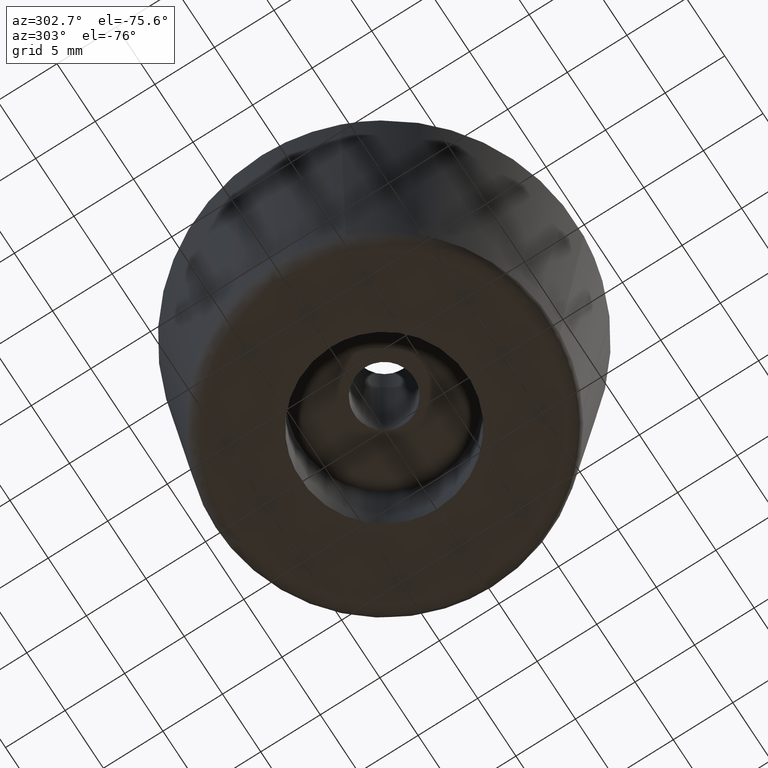
[diagram: clean part render]
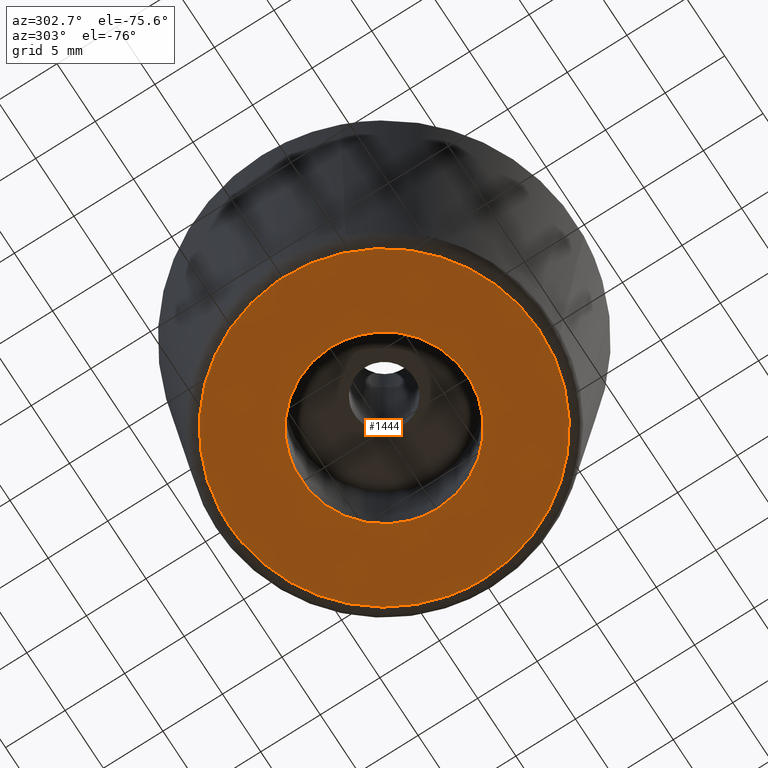
[diagram: same view with one face highlighted and labeled with its STEP entity id]
A machine part, auxiliary view. The second image highlights one B-rep face of the part: STEP entity #1444.
In plain terms, the highlighted face is a freeform B-spline surface patch.
Its self-contained STEP definition (entity closure, byte-faithful):
#519=CARTESIAN_POINT('',(-0.826232407674893,6.951067544518226,4.183897E-014));
#520=VERTEX_POINT('',#519);
#521=CARTESIAN_POINT('',(7.0,0.0,0.0));
#522=VERTEX_POINT('',#521);
#523=CARTESIAN_POINT('',(-0.826232407674893,6.951067544518226,4.183897E-014));
#524=CARTESIAN_POINT('',(-0.414565181859389,7.0,0.0));
#525=CARTESIAN_POINT('',(0.0,7.0,0.0));
#526=CARTESIAN_POINT('',(6.999999999999999,6.999999999999999,0.0));
#527=CARTESIAN_POINT('',(7.0,0.0,0.0));
#535=(BOUNDED_CURVE()B_SPLINE_CURVE(2,(#523,#524,#525,#526,#527),.UNSPECIFIED.,.F.,.U.)B_SPLINE_CURVE_WITH_KNOTS((3,2,3),(0.229562649420369,0.250000000000000,0.500000000000000),.UNSPECIFIED.)CURVE()GEOMETRIC_REPRESENTATION_ITEM()RATIONAL_B_SPLINE_CURVE((0.956027098968635,0.976056154418852,1.0,0.707106781186547,1.0))REPRESENTATION_ITEM(''));
#536=EDGE_CURVE('',#520,#522,#535,.T.);
#538=CARTESIAN_POINT('',(0.427328470493930,-6.986944280454582,2.503553E-014));
#539=VERTEX_POINT('',#538);
#540=CARTESIAN_POINT('',(7.0,0.0,0.0));
#541=CARTESIAN_POINT('',(7.000000000000001,-6.584953143992288,0.0));
#542=CARTESIAN_POINT('',(0.427328470493929,-6.986944280454582,2.503553E-014));
#550=(BOUNDED_CURVE()B_SPLINE_CURVE(2,(#540,#541,#542),.UNSPECIFIED.,.F.,.U.)B_SPLINE_CURVE_WITH_KNOTS((3,3),(0.500000000000000,0.739333241456697),.UNSPECIFIED.)CURVE()GEOMETRIC_REPRESENTATION_ITEM()RATIONAL_B_SPLINE_CURVE((1.0,0.719603666162763,0.976072640084247))REPRESENTATION_ITEM(''));
#551=EDGE_CURVE('',#522,#539,#550,.T.);
#618=CARTESIAN_POINT('',(-7.0,0.0,0.0));
#619=VERTEX_POINT('',#618);
#620=CARTESIAN_POINT('',(-7.0,0.0,0.0));
#621=CARTESIAN_POINT('',(-7.000000000000001,6.217228198326260,0.0));
#622=CARTESIAN_POINT('',(-0.826232407674893,6.951067544518226,4.183897E-014));
#630=(BOUNDED_CURVE()B_SPLINE_CURVE(2,(#620,#621,#622),.UNSPECIFIED.,.F.,.U.)B_SPLINE_CURVE_WITH_KNOTS((3,3),(0.0,0.229562649420369),.UNSPECIFIED.)CURVE()GEOMETRIC_REPRESENTATION_ITEM()RATIONAL_B_SPLINE_CURVE((1.0,0.731050626767696,0.956027098968635))REPRESENTATION_ITEM(''));
#631=EDGE_CURVE('',#619,#520,#630,.T.);
#665=CARTESIAN_POINT('',(0.427328470493929,-6.986944280454582,2.503553E-014));
#666=CARTESIAN_POINT('',(0.213863674114976,-7.000000000000001,0.0));
#667=CARTESIAN_POINT('',(0.0,-7.0,0.0));
#668=CARTESIAN_POINT('',(-6.999999999999999,-6.999999999999999,0.0));
#669=CARTESIAN_POINT('',(-7.0,0.0,0.0));
#677=(BOUNDED_CURVE()B_SPLINE_CURVE(2,(#665,#666,#667,#668,#669),.UNSPECIFIED.,.F.,.U.)B_SPLINE_CURVE_WITH_KNOTS((3,2,3),(0.739333241456697,0.750000000000000,1.0),.UNSPECIFIED.)CURVE()GEOMETRIC_REPRESENTATION_ITEM()RATIONAL_B_SPLINE_CURVE((0.976072640084247,0.987503115023785,1.0,0.707106781186547,1.0))REPRESENTATION_ITEM(''));
#678=EDGE_CURVE('',#539,#619,#677,.T.);
#1300=CARTESIAN_POINT('',(1.566172056542565,12.982677935015291,2.068648E-016));
#1301=VERTEX_POINT('',#1300);
#1302=CARTESIAN_POINT('',(13.076804703681240,0.0,0.0));
#1303=VERTEX_POINT('',#1302);
#1304=CARTESIAN_POINT('',(1.566172056542565,12.982677935015296,2.068648E-016));
#1305=CARTESIAN_POINT('',(13.076804703681237,11.594086821219348,0.0));
#1306=CARTESIAN_POINT('',(13.076804703681240,0.0,0.0));
#1314=(BOUNDED_CURVE()B_SPLINE_CURVE(2,(#1304,#1305,#1306),.UNSPECIFIED.,.F.,.U.)B_SPLINE_CURVE_WITH_KNOTS((3,3),(0.270732403714513,0.500000000000000),.UNSPECIFIED.)CURVE()GEOMETRIC_REPRESENTATION_ITEM()RATIONAL_B_SPLINE_CURVE((0.955449597719549,0.731396303017282,1.0))REPRESENTATION_ITEM(''));
#1315=EDGE_CURVE('',#1301,#1303,#1314,.T.);
#1335=CARTESIAN_POINT('',(-13.051000617162460,0.821099361180043,1.866568E-016));
#1336=VERTEX_POINT('',#1335);
#1350=CARTESIAN_POINT('',(-13.076804703681240,0.0,0.0));
#1351=VERTEX_POINT('',#1350);
#1352=CARTESIAN_POINT('',(-13.076804703681240,0.0,0.0));
#1353=CARTESIAN_POINT('',(-13.076804703681239,0.410955143638899,0.0));
#1354=CARTESIAN_POINT('',(-13.051000617162464,0.821099361180043,1.866568E-016));
#1362=(BOUNDED_CURVE()B_SPLINE_CURVE(2,(#1352,#1353,#1354),.UNSPECIFIED.,.F.,.U.)B_SPLINE_CURVE_WITH_KNOTS((3,3),(0.0,0.010968089260269),.UNSPECIFIED.)CURVE()GEOMETRIC_REPRESENTATION_ITEM()RATIONAL_B_SPLINE_CURVE((1.0,0.987150084129307,0.975427680452667))REPRESENTATION_ITEM(''));
#1363=EDGE_CURVE('',#1351,#1336,#1362,.T.);
#1365=CARTESIAN_POINT('',(13.076804703681240,0.0,0.0));
#1366=CARTESIAN_POINT('',(13.076804703681239,-13.076804703681239,0.0));
#1367=CARTESIAN_POINT('',(0.0,-13.076804703681240,0.0));
#1368=CARTESIAN_POINT('',(-13.076804703681239,-13.076804703681239,0.0));
#1369=CARTESIAN_POINT('',(-13.076804703681240,0.0,0.0));
#1377=(BOUNDED_CURVE()B_SPLINE_CURVE(2,(#1365,#1366,#1367,#1368,#1369),.UNSPECIFIED.,.F.,.U.)B_SPLINE_CURVE_WITH_KNOTS((3,2,3),(0.500000000000000,0.750000000000000,1.0),.UNSPECIFIED.)CURVE()GEOMETRIC_REPRESENTATION_ITEM()RATIONAL_B_SPLINE_CURVE((1.0,0.707106781186547,1.0,0.707106781186547,1.0))REPRESENTATION_ITEM(''));
#1378=EDGE_CURVE('',#1303,#1351,#1377,.T.);
#1406=CARTESIAN_POINT('',(-13.051000617162464,0.821099361180043,1.866568E-016));
#1407=CARTESIAN_POINT('',(-12.279936993079630,13.076804703681240,0.0));
#1408=CARTESIAN_POINT('',(0.0,13.076804703681240,0.0));
#1409=CARTESIAN_POINT('',(0.785914532518624,13.076804703681240,0.0));
#1410=CARTESIAN_POINT('',(1.566172056542565,12.982677935015296,2.068648E-016));
#1418=(BOUNDED_CURVE()B_SPLINE_CURVE(2,(#1406,#1407,#1408,#1409,#1410),.UNSPECIFIED.,.F.,.U.)B_SPLINE_CURVE_WITH_KNOTS((3,2,3),(0.010968089260269,0.250000000000000,0.270732403714513),.UNSPECIFIED.)CURVE()GEOMETRIC_REPRESENTATION_ITEM()RATIONAL_B_SPLINE_CURVE((0.975427680452667,0.719956697057241,1.0,0.975710478169265,0.955449597719549))REPRESENTATION_ITEM(''));
#1419=EDGE_CURVE('',#1336,#1301,#1418,.T.);
#1427=CARTESIAN_POINT('',(-14.383177933910970,-14.383134612513340,0.0));
#1428=CARTESIAN_POINT('',(14.383178167742461,-14.383134612513340,0.0));
#1429=CARTESIAN_POINT('',(-14.383177933910970,14.382267554302439,0.0));
#1430=CARTESIAN_POINT('',(14.383178167742461,14.382267554302439,0.0));
#1431=B_SPLINE_SURFACE_WITH_KNOTS('',1,1,((#1427,#1429),(#1428,#1430)),.UNSPECIFIED.,.F.,.F.,.U.,(2,2),(2,2),(0.0,28.766356101653429),(0.0,28.765402166815779),.UNSPECIFIED.);
#1432=ORIENTED_EDGE('',*,*,#1363,.T.);
#1433=ORIENTED_EDGE('',*,*,#1419,.T.);
#1434=ORIENTED_EDGE('',*,*,#1315,.T.);
#1435=ORIENTED_EDGE('',*,*,#1378,.T.);
#1436=EDGE_LOOP('',(#1432,#1433,#1434,#1435));
#1437=FACE_OUTER_BOUND('',#1436,.T.);
#1438=ORIENTED_EDGE('',*,*,#551,.F.);
#1439=ORIENTED_EDGE('',*,*,#536,.F.);
#1440=ORIENTED_EDGE('',*,*,#631,.F.);
#1441=ORIENTED_EDGE('',*,*,#678,.F.);
#1442=EDGE_LOOP('',(#1438,#1439,#1440,#1441));
#1443=FACE_BOUND('',#1442,.T.);
#1444=ADVANCED_FACE('',(#1437,#1443),#1431,.F.);